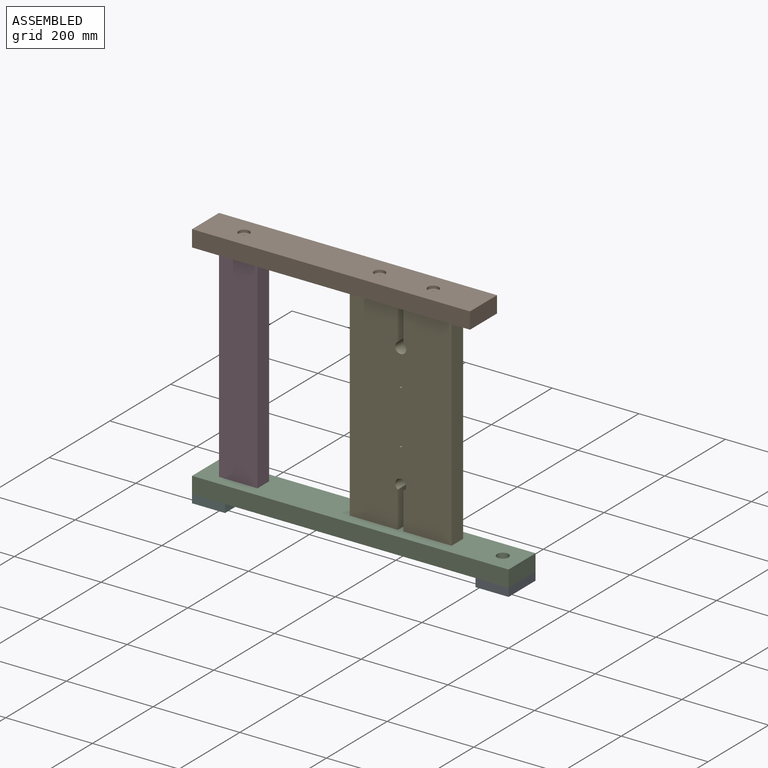
[diagram: assembled view]
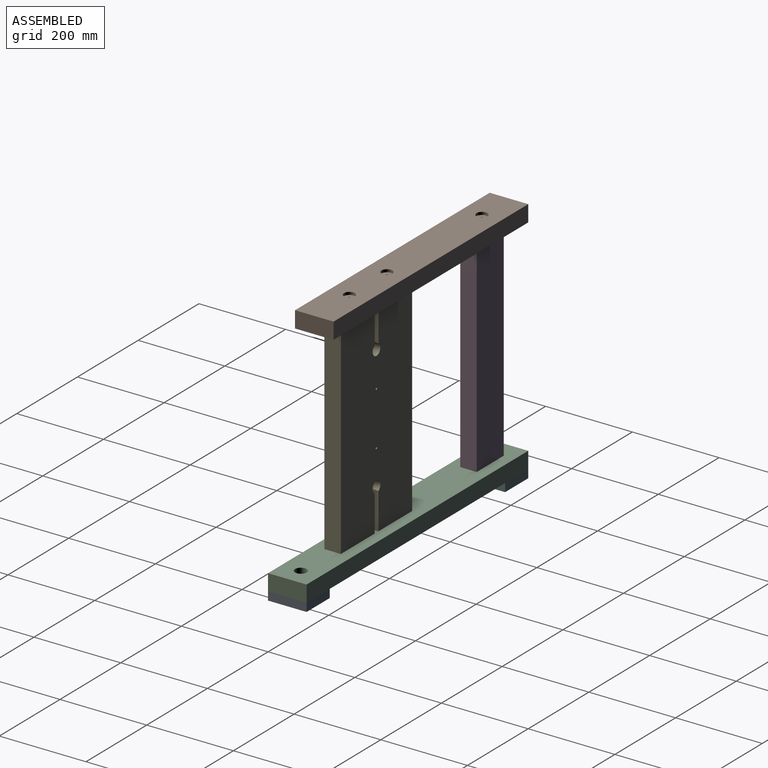
[diagram: assembled view, second angle]
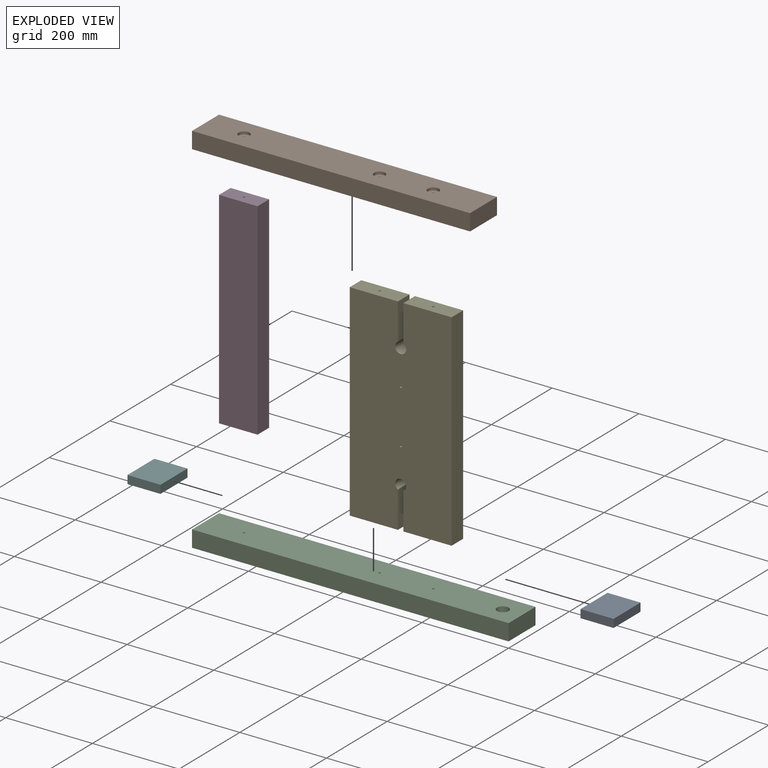
[diagram: exploded view]
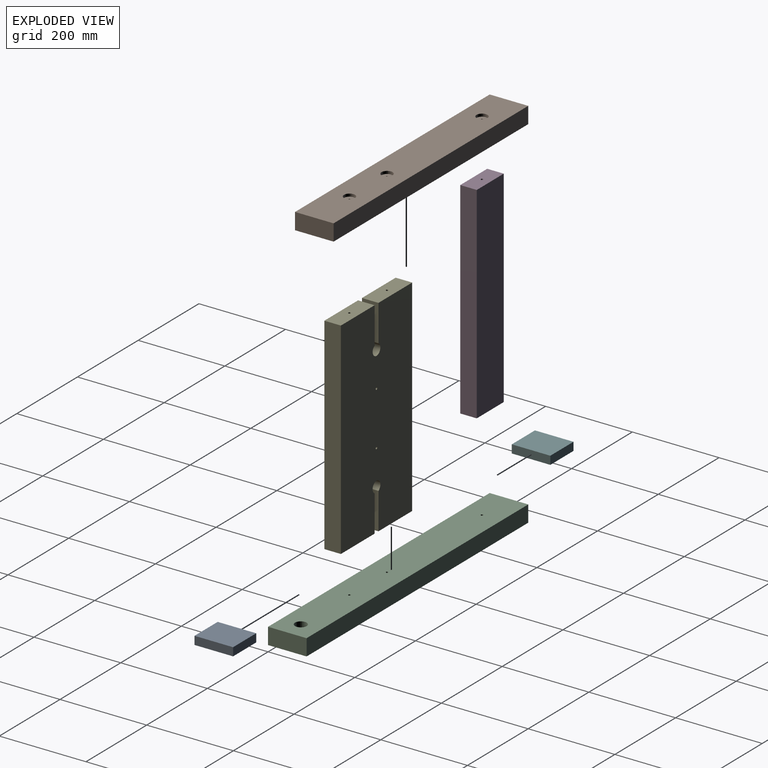
[diagram: exploded view, second angle]
ASSEMBLY  parts=6 mates=5
PART A: 6 faces, bbox 76.2x88.9x19.1 mm
  f0: plane 88.9x19.05mm, normal (1,0,0), area 1693.5mm2, adj f1,f3,f4,f5
  f1: plane 88.9x76.2mm, normal (0,0,1), area 6774.2mm2, adj f0,f2,f4,f5
  f2: plane 88.9x19.05mm, normal (-1,0,0), area 1693.5mm2, adj f1,f3,f4,f5
  f3: plane 88.9x76.2mm, normal (0,0,-1), area 6774.2mm2, adj f0,f2,f4,f5
  f4: plane 76.2x19.05mm, normal (0,-1,0), area 1451.6mm2, adj f0,f1,f2,f3
  f5: plane 76.2x19.05mm, normal (0,1,0), area 1451.6mm2, adj f0,f1,f2,f3
PART B: 15 faces, bbox 641.4x88.9x38.1 mm
  f0: cylinder r=2.55mm len=31.75mm, axis (0,0,-1), area 509.2mm2, adj f5,f13
  f1: cylinder r=2.55mm len=31.75mm, axis (0,0,-1), area 509.2mm2, adj f5,f11
  f2: cylinder r=2.55mm len=31.75mm, axis (0,0,-1), area 509.2mm2, adj f5,f9
  f3: plane 641.35x88.9mm, normal (0,0,1), area 55495.9mm2, adj f4,f6,f7,f8,f10,f12,f14
  f4: plane 88.9x38.1mm, normal (-1,0,0), area 3387.1mm2, adj f3,f5,f7,f8
  f5: plane 641.35x88.9mm, normal (0,0,-1), area 56954.6mm2, adj f0,f1,f2,f4,f6,f7,f8
  f6: plane 88.9x38.1mm, normal (1,0,0), area 3387.1mm2, adj f3,f5,f7,f8
  f7: plane 641.35x38.1mm, normal (0,-1,0), area 24435.4mm2, adj f3,f4,f5,f6
  f8: plane 641.35x38.1mm, normal (0,1,0), area 24435.4mm2, adj f3,f4,f5,f6
  f9: plane 25.4x25.4mm, normal (0,0,1), area 486.2mm2, adj f2,f10
  f10: cylinder r=12.7mm len=25.4mm, axis (0,0,1), area 506.7mm2, adj f3,f9
  f11: plane 25.4x25.4mm, normal (0,0,1), area 486.2mm2, adj f1,f12
  f12: cylinder r=12.7mm len=25.4mm, axis (0,0,1), area 506.7mm2, adj f3,f11
  f13: plane 25.4x25.4mm, normal (0,0,1), area 486.2mm2, adj f0,f14
  f14: cylinder r=12.7mm len=25.4mm, axis (0,0,1), area 506.7mm2, adj f3,f13
PART C: 17 faces, bbox 730.3x88.9x38.1 mm
  f0: plane 730.25x88.9mm, normal (0,0,-1), area 63399.1mm2, adj f1,f3,f4,f5,f8,f11,f14
  f1: plane 88.9x38.1mm, normal (1,0,0), area 3387.1mm2, adj f0,f2,f4,f5
  f2: plane 730.25x88.9mm, normal (0,0,1), area 64285.8mm2, adj f1,f3,f4,f5,f6,f9,f12,f15
  f3: plane 88.9x38.1mm, normal (-1,0,0), area 3387.1mm2, adj f0,f2,f4,f5
  f4: plane 730.25x38.1mm, normal (0,-1,0), area 27822.5mm2, adj f0,f1,f2,f3
  f5: plane 730.25x38.1mm, normal (0,1,0), area 27822.5mm2, adj f0,f1,f2,f3
  f6: cylinder r=2.55mm len=31.75mm, axis (0,0,-1), area 509.2mm2, adj f2,f7
  f7: plane 25.4x25.4mm, normal (0,0,-1), area 486.2mm2, adj f6,f8
  f8: cylinder r=12.7mm len=25.4mm, axis (0,0,-1), area 506.7mm2, adj f0,f7
  f9: cylinder r=2.55mm len=31.75mm, axis (0,0,-1), area 509.2mm2, adj f2,f10
  f10: plane 25.4x25.4mm, normal (0,0,-1), area 486.2mm2, adj f9,f11
  f11: cylinder r=12.7mm len=25.4mm, axis (0,0,-1), area 506.7mm2, adj f0,f10
  f12: cylinder r=2.55mm len=31.75mm, axis (0,0,-1), area 509.2mm2, adj f2,f13
  f13: plane 25.4x25.4mm, normal (0,0,-1), area 486.2mm2, adj f12,f14
  f14: cylinder r=12.7mm len=25.4mm, axis (0,0,-1), area 506.7mm2, adj f0,f13
  f15: cylinder r=13.49mm len=26.99mm, axis (0,0,1), area 1076.8mm2, adj f2,f16
  f16: plane 26.99x26.99mm, normal (0,0,1), area 572mm2, adj f15
PART D: 10 faces, bbox 88.9x38.1x476.3 mm
  f0: plane 476.25x38.1mm, normal (1,0,0), area 18145.1mm2, adj f1,f3,f4,f5
  f1: plane 88.9x38.1mm, normal (0,0,1), area 3366.6mm2, adj f0,f2,f4,f5,f9
  f2: plane 476.25x38.1mm, normal (-1,0,0), area 18145.1mm2, adj f1,f3,f4,f5
  f3: plane 88.9x38.1mm, normal (0,0,-1), area 3366.6mm2, adj f0,f2,f4,f5,f6
  f4: plane 476.25x88.9mm, normal (0,-1,0), area 42338.6mm2, adj f0,f1,f2,f3
  f5: plane 476.25x88.9mm, normal (0,1,0), area 42338.6mm2, adj f0,f1,f2,f3
  f6: cylinder r=2.55mm len=16.51mm, axis (0,0,-1), area 264.8mm2, adj f3,f7
  f7: cone r=0mm half-angle=59deg, axis (0,0,-1), area 23.9mm2, adj f6
  f8: cone r=0mm half-angle=59deg, axis (0,0,1), area 23.9mm2, adj f9
  f9: cylinder r=2.55mm len=16.51mm, axis (0,0,1), area 264.8mm2, adj f1,f8
PART E: 24 faces, bbox 235x38.1x476.3 mm
  f0: plane 111.13x38.1mm, normal (0,0,-1), area 4213.4mm2, adj f1,f11,f12,f13,f15
  f1: plane 84.25x38.1mm, normal (1,0,0), area 3210mm2, adj f0,f2,f12,f13
  f2: cylinder r=12.7mm len=38.1mm, axis (0,1,0), area 2533.5mm2, adj f1,f3,f12,f13
  f3: plane 84.25x38.1mm, normal (-1,0,0), area 3210mm2, adj f2,f4,f12,f13
  f4: plane 111.13x38.1mm, normal (0,0,-1), area 4213.4mm2, adj f3,f5,f12,f13,f17
  f5: plane 476.25x38.1mm, normal (1,0,0), area 18145.1mm2, adj f4,f6,f12,f13
  f6: plane 111.13x38.1mm, normal (0,0,1), area 4213.4mm2, adj f5,f7,f12,f13,f21
  f7: plane 84.25x38.1mm, normal (-1,0,0), area 3210mm2, adj f6,f8,f12,f13
  f8: cylinder r=12.7mm len=38.1mm, axis (0,1,0), area 2533.5mm2, adj f7,f9,f12,f13
  f9: plane 84.25x38.1mm, normal (1,0,0), area 3210mm2, adj f8,f10,f12,f13
  f10: plane 111.13x38.1mm, normal (0,0,1), area 4213.4mm2, adj f9,f11,f12,f13,f19
  f11: plane 476.25x38.1mm, normal (-1,0,0), area 18145.1mm2, adj f0,f10,f12,f13
  f12: plane 476.25x234.95mm, normal (0,-1,0), area 108729.8mm2, adj f0,f1,f2,f3,f4,f5,f6,f7
  f13: plane 476.25x234.95mm, normal (0,1,0), area 108729.8mm2, adj f0,f1,f2,f3,f4,f5,f6,f7
  f14: cone r=0mm half-angle=59deg, axis (0,0,-1), area 23.9mm2, adj f15
  f15: cylinder r=2.55mm len=16.51mm, axis (0,0,-1), area 264.8mm2, adj f0,f14
  f16: cone r=0mm half-angle=59deg, axis (0,0,-1), area 23.9mm2, adj f17
  f17: cylinder r=2.55mm len=16.51mm, axis (0,0,-1), area 264.8mm2, adj f4,f16
  f18: cone r=0mm half-angle=59deg, axis (0,0,1), area 23.9mm2, adj f19
  f19: cylinder r=2.55mm len=16.51mm, axis (0,0,1), area 264.8mm2, adj f10,f18
  f20: cone r=0mm half-angle=59deg, axis (0,0,1), area 23.9mm2, adj f21
  f21: cylinder r=2.55mm len=16.51mm, axis (0,0,1), area 264.8mm2, adj f6,f20
  f22: cylinder r=2.55mm len=38.1mm, axis (0,-1,0), area 611.1mm2, adj f12,f13
  f23: cylinder r=2.55mm len=38.1mm, axis (0,-1,0), area 611.1mm2, adj f12,f13
PART F: same geometry as A
PLACE A t=(0,44.45,0)mm
PLACE B t=(0,44.45,0)mm
PLACE C t=(0,44.45,0)mm
PLACE D t=(0,44.45,0)mm
PLACE E t=(0,44.45,0)mm
PLACE F t=(-654.05,44.45,0)mm
MATE fastened A.f0 <-> C.f1  axis (1,0,0) through (0,0,19.05)mm
MATE fastened B.f10 <-> D.f8  axis (0,0,-1) through (-641.35,44.45,533.4)mm
MATE fastened E.f16 <-> C.f9  axis (0,0,-1) through (-204.79,44.45,57.15)mm
MATE fastened F.f2 <-> C.f3  axis (-1,0,0) through (-730.25,44.45,19.05)mm
MATE fastened D.f6 <-> C.f12  axis (0,0,-1) through (-641.35,44.45,57.15)mm
